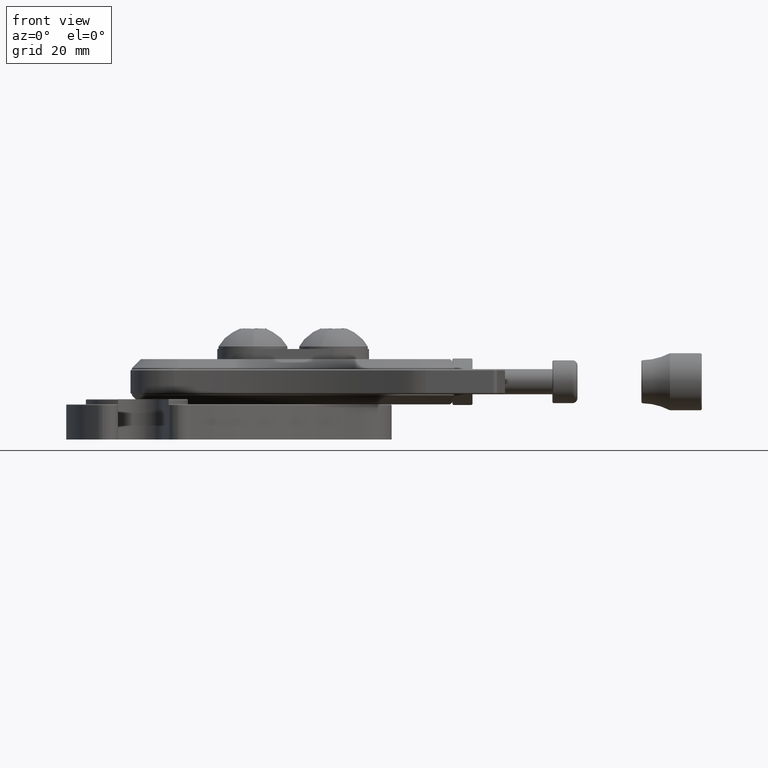
[diagram: clean part render]
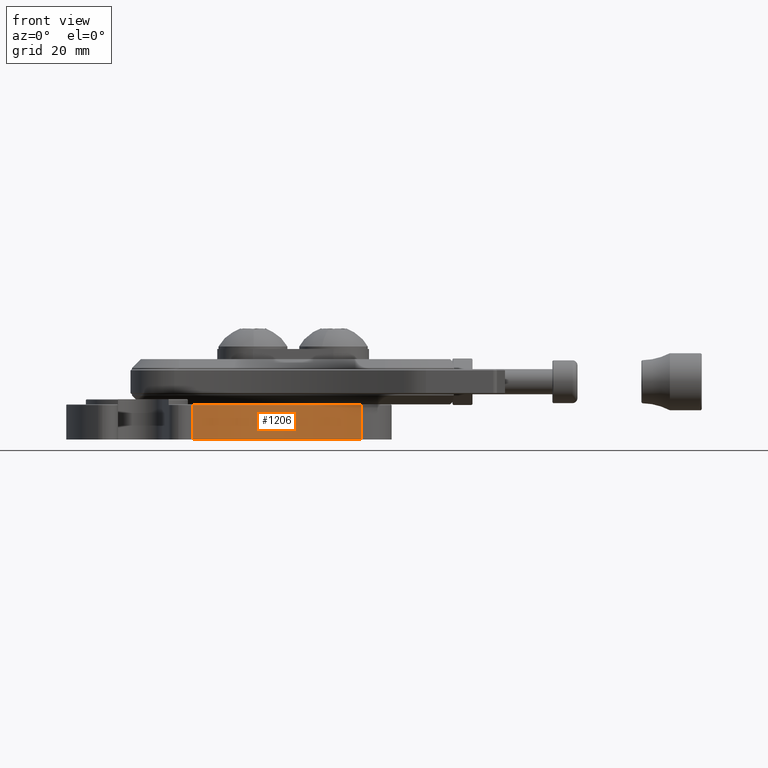
[diagram: same view with one face highlighted and labeled with its STEP entity id]
A machine part, front view. The second image highlights one B-rep face of the part: STEP entity #1206.
In plain terms, the highlighted cylindrical surface (partial cylindrical patch) has radius 50.8 mm, axis along (0, -0, -1).
Its self-contained STEP definition (entity closure, byte-faithful):
#31 = CARTESIAN_POINT ( 'NONE',  ( 3.754984335640991800, -3.050469585540007700, 0.0000000000000000000 ) ) ;
#32 = DIRECTION ( 'NONE',  ( -0.0000000000000000000, -0.0000000000000000000, -1.000000000000000000 ) ) ;
#33 = DIRECTION ( 'NONE',  ( 1.000000000000000000, 0.0000000000000000000, 0.0000000000000000000 ) ) ;
#93 = CARTESIAN_POINT ( 'NONE',  ( 4.379202952099031000, -1.150377188084925600, 0.2750000000000000200 ) ) ;
#95 = DIRECTION ( 'NONE',  ( -0.0000000000000000000, -0.0000000000000000000, -1.000000000000000000 ) ) ;
#320 = ORIENTED_EDGE ( 'NONE', *, *, #4543, .T. ) ;
#807 = EDGE_CURVE ( 'NONE', #1857, #2585, #3005, .T. ) ;
#927 = ORIENTED_EDGE ( 'NONE', *, *, #807, .T. ) ;
#1206 = ADVANCED_FACE ( 'NONE', ( #7071 ), #7078, .F. ) ;
#1245 = ORIENTED_EDGE ( 'NONE', *, *, #6788, .T. ) ;
#1246 = ORIENTED_EDGE ( 'NONE', *, *, #4524, .F. ) ;
#1857 = VERTEX_POINT ( 'NONE', #5456 ) ;
#1868 = VERTEX_POINT ( 'NONE', #5474 ) ;
#1932 = EDGE_LOOP ( 'NONE', ( #1246, #1245, #927, #320 ) ) ;
#2585 = VERTEX_POINT ( 'NONE', #5574 ) ;
#2622 = VERTEX_POINT ( 'NONE', #4976 ) ;
#3005 = LINE ( 'NONE', #93, #3008 ) ;
#3008 = VECTOR ( 'NONE', #95, 39.37007874015748100 ) ;
#3379 = AXIS2_PLACEMENT_3D ( 'NONE', #5797, #5799, #5796 ) ;
#3518 = AXIS2_PLACEMENT_3D ( 'NONE', #31, #32, #33 ) ;
#3621 = CARTESIAN_POINT ( 'NONE',  ( 3.754984335640991800, -3.050469585540007700, 0.2699999999999999600 ) ) ;
#3622 = DIRECTION ( 'NONE',  ( -0.0000000000000000000, -0.0000000000000000000, 1.000000000000000000 ) ) ;
#3623 = DIRECTION ( 'NONE',  ( 1.000000000000000000, 0.0000000000000000000, 0.0000000000000000000 ) ) ;
#4192 = CIRCLE ( 'NONE', #5348, 1.999999999999847000 ) ;
#4435 = LINE ( 'NONE', #7409, #4437 ) ;
#4437 = VECTOR ( 'NONE', #7410, 39.37007874015748100 ) ;
#4461 = CIRCLE ( 'NONE', #3518, 1.999999999999847000 ) ;
#4524 = EDGE_CURVE ( 'NONE', #1868, #2622, #4435, .T. ) ;
#4543 = EDGE_CURVE ( 'NONE', #2585, #2622, #4461, .T. ) ;
#4976 = CARTESIAN_POINT ( 'NONE',  ( 5.579456075913273400, -2.231138841000769100, 0.0000000000000000000 ) ) ;
#5348 = AXIS2_PLACEMENT_3D ( 'NONE', #3621, #3622, #3623 ) ;
#5456 = CARTESIAN_POINT ( 'NONE',  ( 4.379202952099031000, -1.150377188084925600, 0.2699999999999999600 ) ) ;
#5474 = CARTESIAN_POINT ( 'NONE',  ( 5.579456075913273400, -2.231138841000769100, 0.2699999999999999600 ) ) ;
#5574 = CARTESIAN_POINT ( 'NONE',  ( 4.379202952099031000, -1.150377188084925600, 0.0000000000000000000 ) ) ;
#5796 = DIRECTION ( 'NONE',  ( -1.000000000000000000, 0.0000000000000000000, 0.0000000000000000000 ) ) ;
#5797 = CARTESIAN_POINT ( 'NONE',  ( 3.754984335640991800, -3.050469585540007700, 0.2750000000000000200 ) ) ;
#5799 = DIRECTION ( 'NONE',  ( -0.0000000000000000000, -0.0000000000000000000, -1.000000000000000000 ) ) ;
#6788 = EDGE_CURVE ( 'NONE', #1868, #1857, #4192, .T. ) ;
#7071 = FACE_OUTER_BOUND ( 'NONE', #1932, .T. ) ;
#7078 = CYLINDRICAL_SURFACE ( 'NONE', #3379, 1.999999999999847200 ) ;
#7409 = CARTESIAN_POINT ( 'NONE',  ( 5.579456075913273400, -2.231138841000769100, 0.2750000000000000200 ) ) ;
#7410 = DIRECTION ( 'NONE',  ( -0.0000000000000000000, -0.0000000000000000000, -1.000000000000000000 ) ) ;